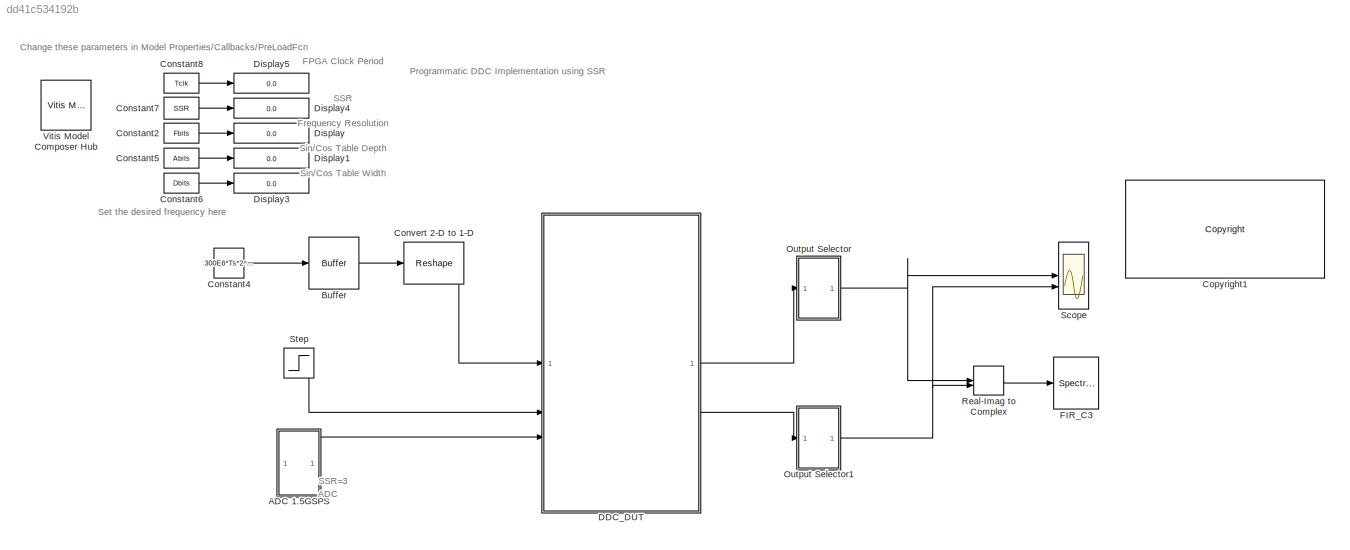
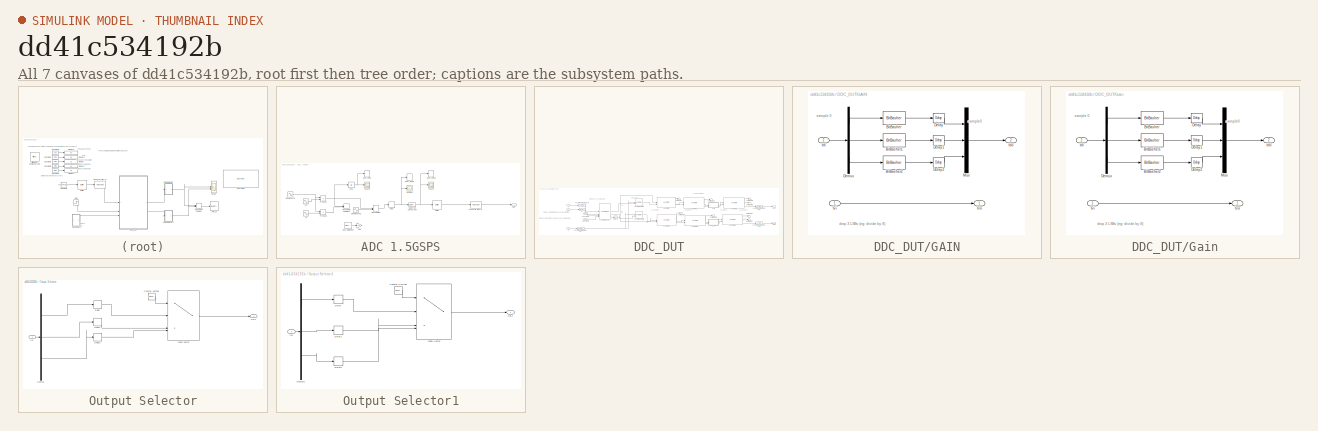
[diagram: thumbnail index - all 7 canvases of the model, root first then tree order]
MODEL slx_dd41c534192b
KIND model
CONFIG AbsTol = auto
CONFIG EnableMultiTasking = off
CONFIG FixedStep = auto
CONFIG MaxStep = auto
CONFIG MinStep = auto
CONFIG PreLoadFcn = Fbits=48; %frequency resolution\nAbits=16; %Sin/COS table depth is 2^Abits\nDbits=18; %Sin/COS table width is 1..-Dbits\n\n\nclk = 500e+6; % Hz\nsample_rate = 1/1500e+6; % 1.5GHz\nSSR = ceil((1/sample_rate)*(1/clk));\nTclk = 1/clk;\nTs = sample_rate;\n\n% FIR filter chain variables\nfir0=[-6,0,54,0,-254,0,1230,2048,1230,0,-254,0,54,0,-6];\n\nfir1=[-12,0,84,0,-337,0,1008,0,-2693,0,10142,16384,10142,0,-2693,0,100...<+235ch>
CONFIG RelTol = 1e-3
CONFIG SampleTimeConstraint = Unconstrained
CONFIG SolverName = VariableStepAuto
CONFIG StartFcn = start_time = tic;
CONFIG StartTime = 0.0
CONFIG StopFcn = stop_time = toc(start_time)/60
CONFIG StopTime = 10E-6
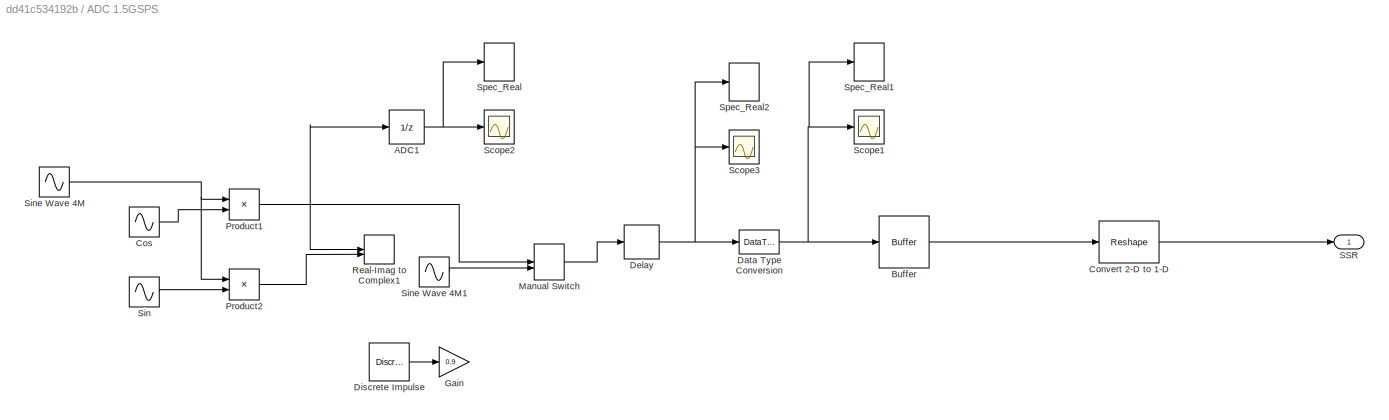
BLOCK [SubSystem] ADC 1.5GSPS
BLOCK [UnitDelay] ADC 1.5GSPS/ADC1
  Commented = on
  HasFrameUpgradeWarning = on
  SampleTime = sample_rate
BLOCK [Buffer] ADC 1.5GSPS/Buffer
  N = 3
  OutputFrames = off
BLOCK [Reshape] ADC 1.5GSPS/Convert 2-D to 1-D
BLOCK [Sin] ADC 1.5GSPS/Cos
  Frequency = 300e6*2*pi
  Phase = 1.5*pi/2
  SampleTime = sample_rate
BLOCK [DataTypeConversion] ADC 1.5GSPS/Data Type Conversion
  LockScale = on
  OutDataTypeStr = fixdt(1,12,11, 'DataTypeOverride', 'Off')
  RndMeth = Floor
  SaturateOnIntegerOverflow = off
BLOCK [Delay] ADC 1.5GSPS/Delay
  DelayLength = 10
  InitialCondition = 0
  InputPortMap = u0
BLOCK [Reference] ADC 1.5GSPS/Discrete Impulse  REF=dspsrcs4/Discrete 
Impulse
  SourceBlock = dspsrcs4/Discrete \nImpulse
  SourceType = Discrete Impulse
BLOCK [Gain] ADC 1.5GSPS/Gain
  Gain = 0.9
BLOCK [ManualSwitch] ADC 1.5GSPS/Manual Switch
BLOCK [Product] ADC 1.5GSPS/Product1
BLOCK [Product] ADC 1.5GSPS/Product2
BLOCK [RealImagToComplex] ADC 1.5GSPS/Real-Imag to Complex1
BLOCK [Outport] ADC 1.5GSPS/SSR
  VectorParamsAs1DForOutWhenUnconnected = off
BLOCK [Scope] ADC 1.5GSPS/Scope1
  Commented = on
  Floating = off
  NumInputPorts = 1
  ScopeSpecificationString = Simulink.scopes.TimeScopeBlockCfg('CurrentConfiguration', extmgr.ConfigurationSet(extmgr.Configuration('Core','General UI',true),extmgr.Configuration('Core','Source UI',true),extmgr.Configuration('Sources','WiredSimulink',true,'DataLoggingVariableName','ScopeData2'),extmgr.Configuration('Visuals','Time Domain',true,'SerializedDisplays',{struct('MinYLimReal','-1.12491','MaxYLimReal','1.12491','YLab...<+1485ch>
BLOCK [Scope] ADC 1.5GSPS/Scope2
  Commented = on
  Floating = off
  NumInputPorts = 1
  ScopeSpecificationString = Simulink.scopes.TimeScopeBlockCfg('CurrentConfiguration', extmgr.ConfigurationSet(extmgr.Configuration('Core','General UI',true),extmgr.Configuration('Core','Source UI',true),extmgr.Configuration('Sources','WiredSimulink',true,'DataLoggingVariableName','ScopeData3'),extmgr.Configuration('Visuals','Time Domain',true,'SerializedDisplays',{struct('MinYLimReal','-1.2499','MaxYLimReal','1.2499','YLabel...<+1437ch>
BLOCK [Scope] ADC 1.5GSPS/Scope3
  Commented = on
  Floating = off
  NumInputPorts = 1
  ScopeSpecificationString = Simulink.scopes.TimeScopeBlockCfg('CurrentConfiguration', extmgr.ConfigurationSet(extmgr.Configuration('Core','General UI',true),extmgr.Configuration('Core','Source UI',true),extmgr.Configuration('Sources','WiredSimulink',true,'DataLoggingVariableName','ScopeData1'),extmgr.Configuration('Visuals','Time Domain',true,'SerializedDisplays',{struct('MinYLimReal','-0.125','MaxYLimReal','1.125','YLabelRe...<+1466ch>
BLOCK [Sin] ADC 1.5GSPS/Sin
  Frequency = 300e6*2*pi
  SampleTime = sample_rate
BLOCK [Sin] ADC 1.5GSPS/Sine Wave 4M
  Amplitude = .9
  Frequency = 4e6*2*pi
  SampleTime = sample_rate
BLOCK [Sin] ADC 1.5GSPS/Sine Wave 4M1
  Amplitude = .9
  Frequency = 4e6*2*pi
  SampleTime = sample_rate
BLOCK [SpectrumAnalyzer] ADC 1.5GSPS/Spec_Real
  AveragingMethod = Exponential
  AxesScaling = Manual
  ChannelNames = [""]
  Commented = on
  DefaultConfigurationName = spbscopes.SpectrumAnalyzerBlockCfg
  GraphicalSettings = {"GraphicalSettings":{"Style":{"AxesColor":"[0 0 0]","DefaultMarker":"none","DisplayName":"","LabelsColor":"[0.686274509803922 0.686274509803922 0.686274509803922]","Line":"1","LineColor":"[[1      0.9098     0.39216]]","LineStyle":"[-]","LineWidth":"[1]","Marker":"[none]","MarkerEdgeColor":"auto","MarkerFaceColor":"none","MarkerSize":"6","Measurements":"struct","OnceAtStop":"false","Visible":"off...<+29ch>  <repeated x3 — deduplicated; at blocks: Spec_Real, Spec_Real1, Spec_Real2>
  Method = Welch
  SampleRate = 1500000000
  ScopeSpecificationString = spbscopes.SpectrumAnalyzerBlockCfg('CurrentConfiguration', extmgr.ConfigurationSet(extmgr.Configuration('Core','General UI',true,'FigureColor',[0.16        0.16        0.16]),extmgr.Configuration('Visuals','Spectrum',true,'Title','','YLabel','','MinYLim','-189.2899','MaxYLim','40.9275','Legend',false,'AxesProperties',struct('XGrid',{'on','on'},'YGrid',{'on','on'},'ZGrid',{'on','on'},'Color',{[0 0 ...<+2163ch>
  Span = 5e-09
  StartFrequency = -2.5e-09
  StopFrequency = 2.5e-09
  WasSavedAsWebScope = on
  WindowPosition = [635.4 8.2 638.4 420]
  YLimits = [-189.2899,40.9275]
BLOCK [SpectrumAnalyzer] ADC 1.5GSPS/Spec_Real1
  AveragingMethod = Exponential
  AxesScaling = Manual
  ChannelNames = [""]
  Commented = on
  DefaultConfigurationName = spbscopes.SpectrumAnalyzerBlockCfg
  Method = Welch
  SampleRate = 1500000000
  ScopeSpecificationString = spbscopes.SpectrumAnalyzerBlockCfg('CurrentConfiguration', extmgr.ConfigurationSet(extmgr.Configuration('Core','General UI',true,'FigureColor',[0.16        0.16        0.16]),extmgr.Configuration('Visuals','Spectrum',true,'Title','','YLabel','','MinYLim','-206.5987','MaxYLim','41.8342','Legend',false,'AxesProperties',struct('XGrid',{'on','on'},'YGrid',{'on','on'},'ZGrid',{'on','on'},'Color',{[0 0 ...<+2158ch>
  Span = 5e-09
  StartFrequency = -2.5e-09
  StopFrequency = 2.5e-09
  WasSavedAsWebScope = on
  WindowPosition = [9 9 1264 630.4]
  YLimits = [-206.5987,41.8342]
BLOCK [SpectrumAnalyzer] ADC 1.5GSPS/Spec_Real2
  AveragingMethod = Exponential
  AxesScaling = Manual
  ChannelNames = [""]
  Commented = on
  DefaultConfigurationName = spbscopes.SpectrumAnalyzerBlockCfg
  Method = Welch
  SampleRate = 1500000000
  ScopeSpecificationString = spbscopes.SpectrumAnalyzerBlockCfg('CurrentConfiguration', extmgr.ConfigurationSet(extmgr.Configuration('Core','General UI',true,'FigureColor',[0.16        0.16        0.16]),extmgr.Configuration('Visuals','Spectrum',true,'Title','','YLabel','','MinYLim','-206.5987','MaxYLim','41.8342','Legend',false,'AxesProperties',struct('XGrid',{'on','on'},'YGrid',{'on','on'},'ZGrid',{'on','on'},'Color',{[0 0 ...<+2161ch>
  Span = 5e-09
  StartFrequency = -2.5e-09
  StopFrequency = 2.5e-09
  WasSavedAsWebScope = on
  WindowPosition = [4.2 13 1264 630.4]
  YLimits = [-206.5987,41.8342]
BLOCK [Buffer] Buffer
  N = SSR
  OutputFrames = off
BLOCK [Constant] Constant2
  OutDataTypeStr = int32
  SampleTime = -1
  Value = Fbits
BLOCK [Constant] Constant4
  OutDataTypeStr = fixdt(1,Fbits,0)
  SampleTime = -1
  Value = 300E6*Ts*2^Fbits
BLOCK [Constant] Constant5
  OutDataTypeStr = int32
  SampleTime = -1
  Value = Abits
BLOCK [Constant] Constant6
  OutDataTypeStr = int32
  SampleTime = -1
  Value = Dbits
BLOCK [Constant] Constant7
  OutDataTypeStr = int32
  SampleTime = -1
  Value = SSR
BLOCK [Constant] Constant8
  OutDataTypeStr = double
  SampleTime = -1
  Value = Tclk
BLOCK [Reshape] Convert 2-D to 1-D
BLOCK [Reference] Copyright1  REF=hdlUtilities/<copyright redacted>
  SourceBlock = hdlUtilities/<copyright redacted>
  SourceType = Xilinx <copyright redacted>
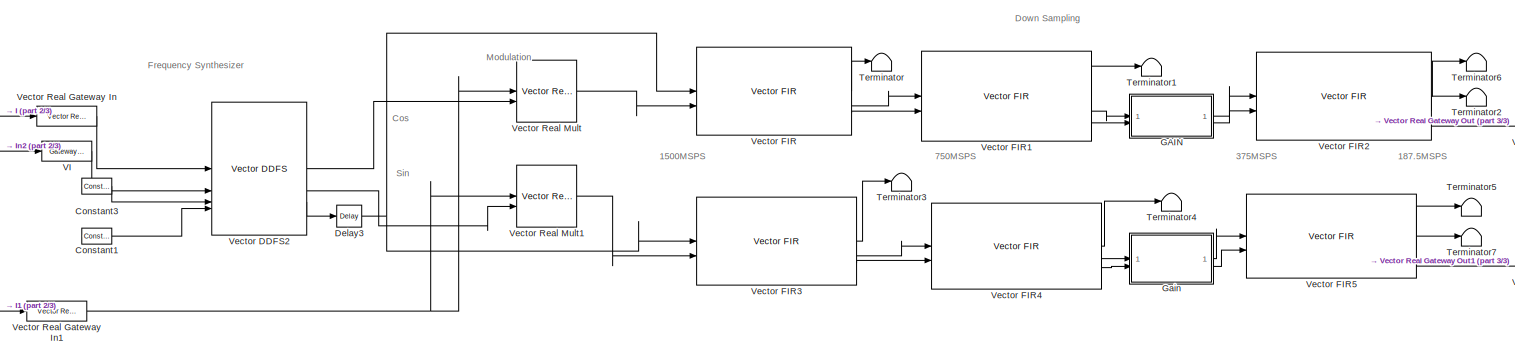
[diagram: DDC_DUT - part 1/3, most of the canvas]
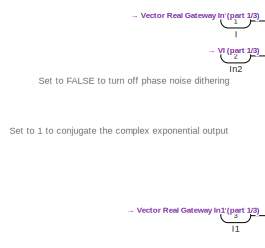
[diagram: DDC_DUT - part 2/3, middle left region]
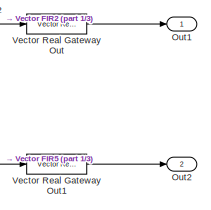
[diagram: DDC_DUT - part 3/3, middle right region]
BLOCK [SubSystem] DDC_DUT
BLOCK [Reference] DDC_DUT/Constant1  REF=hdlBasic/Constant
  SourceBlock = hdlBasic/Constant
  SourceType = Constant Block Block
BLOCK [Reference] DDC_DUT/Constant3  REF=hdlBasic/Constant
  SourceBlock = hdlBasic/Constant
  SourceType = Constant Block Block
BLOCK [Reference] DDC_DUT/Delay3  REF=hdlBasic/Delay
  SourceBlock = hdlBasic/Delay
  SourceType = Delay Block
BLOCK [SubSystem] DDC_DUT/GAIN
BLOCK [Reference] DDC_DUT/GAIN/BitBasher  REF=hdlBasic/BitBasher
  SourceBlock = hdlBasic/BitBasher
  SourceType = BitBasher Block
BLOCK [Reference] DDC_DUT/GAIN/BitBasher1  REF=hdlBasic/BitBasher
  SourceBlock = hdlBasic/BitBasher
  SourceType = BitBasher Block
BLOCK [Reference] DDC_DUT/GAIN/BitBasher2  REF=hdlBasic/BitBasher
  SourceBlock = hdlBasic/BitBasher
  SourceType = BitBasher Block
BLOCK [Reference] DDC_DUT/GAIN/Delay  REF=hdlBasic/Delay
  SourceBlock = hdlBasic/Delay
  SourceType = Delay Block
BLOCK [Reference] DDC_DUT/GAIN/Delay1  REF=hdlBasic/Delay
  SourceBlock = hdlBasic/Delay
  SourceType = Delay Block
BLOCK [Reference] DDC_DUT/GAIN/Delay2  REF=hdlBasic/Delay
  SourceBlock = hdlBasic/Delay
  SourceType = Delay Block
BLOCK [Demux] DDC_DUT/GAIN/Demux
  Outputs = 3
BLOCK [Mux] DDC_DUT/GAIN/Mux
  DisplayOption = bar
  Inputs = 3
BLOCK [Inport] DDC_DUT/GAIN/tdi
  Port = 2
BLOCK [Outport] DDC_DUT/GAIN/tdo
  Port = 2
  VectorParamsAs1DForOutWhenUnconnected = off
BLOCK [Inport] DDC_DUT/GAIN/tvi
BLOCK [Outport] DDC_DUT/GAIN/tvo
  VectorParamsAs1DForOutWhenUnconnected = off
BLOCK [SubSystem] DDC_DUT/Gain
BLOCK [Reference] DDC_DUT/Gain/BitBasher  REF=hdlBasic/BitBasher
  SourceBlock = hdlBasic/BitBasher
  SourceType = BitBasher Block
BLOCK [Reference] DDC_DUT/Gain/BitBasher1  REF=hdlBasic/BitBasher
  SourceBlock = hdlBasic/BitBasher
  SourceType = BitBasher Block
BLOCK [Reference] DDC_DUT/Gain/BitBasher2  REF=hdlBasic/BitBasher
  SourceBlock = hdlBasic/BitBasher
  SourceType = BitBasher Block
BLOCK [Reference] DDC_DUT/Gain/Delay  REF=hdlBasic/Delay
  SourceBlock = hdlBasic/Delay
  SourceType = Delay Block
BLOCK [Reference] DDC_DUT/Gain/Delay1  REF=hdlBasic/Delay
  SourceBlock = hdlBasic/Delay
  SourceType = Delay Block
BLOCK [Reference] DDC_DUT/Gain/Delay2  REF=hdlBasic/Delay
  SourceBlock = hdlBasic/Delay
  SourceType = Delay Block
BLOCK [Demux] DDC_DUT/Gain/Demux
  Outputs = 3
BLOCK [Mux] DDC_DUT/Gain/Mux
  DisplayOption = bar
  Inputs = 3
BLOCK [Inport] DDC_DUT/Gain/tdi
  Port = 2
BLOCK [Outport] DDC_DUT/Gain/tdo
  Port = 2
  VectorParamsAs1DForOutWhenUnconnected = off
BLOCK [Inport] DDC_DUT/Gain/tvi
BLOCK [Outport] DDC_DUT/Gain/tvo
  VectorParamsAs1DForOutWhenUnconnected = off
BLOCK [Inport] DDC_DUT/I
BLOCK [Inport] DDC_DUT/I1
  Port = 3
BLOCK [Inport] DDC_DUT/In2
  Port = 2
BLOCK [Outport] DDC_DUT/Out1
BLOCK [Outport] DDC_DUT/Out2
  Port = 2
BLOCK [Terminator] DDC_DUT/Terminator
BLOCK [Terminator] DDC_DUT/Terminator1
BLOCK [Terminator] DDC_DUT/Terminator2
BLOCK [Terminator] DDC_DUT/Terminator3
BLOCK [Terminator] DDC_DUT/Terminator4
BLOCK [Terminator] DDC_DUT/Terminator5
BLOCK [Terminator] DDC_DUT/Terminator6
BLOCK [Terminator] DDC_DUT/Terminator7
BLOCK [Reference] DDC_DUT/VI  REF=hdlBasic/Gateway In
  SourceBlock = hdlBasic/Gateway In
  SourceType = Gateway In Block
BLOCK [Reference] DDC_DUT/Vector DDFS2  REF=hdlSSR/Vector DDFS
  SourceBlock = hdlSSR/Vector DDFS
  SourceType = Xilinx Vector DDFS Block
BLOCK [Reference] DDC_DUT/Vector FIR  REF=hdlSSR/Vector FIR
  SourceBlock = hdlSSR/Vector FIR
  SourceType = Xilinx Vector FIR Compiler 7.2 Block
BLOCK [Reference] DDC_DUT/Vector FIR1  REF=hdlSSR/Vector FIR
  SourceBlock = hdlSSR/Vector FIR
  SourceType = Xilinx Vector FIR Compiler 7.2 Block
BLOCK [Reference] DDC_DUT/Vector FIR2  REF=hdlSSR/Vector FIR
  SourceBlock = hdlSSR/Vector FIR
  SourceType = Xilinx Vector FIR Compiler 7.2 Block
BLOCK [Reference] DDC_DUT/Vector FIR3  REF=hdlSSR/Vector FIR
  SourceBlock = hdlSSR/Vector FIR
  SourceType = Xilinx Vector FIR Compiler 7.2 Block
BLOCK [Reference] DDC_DUT/Vector FIR4  REF=hdlSSR/Vector FIR
  SourceBlock = hdlSSR/Vector FIR
  SourceType = Xilinx Vector FIR Compiler 7.2 Block
BLOCK [Reference] DDC_DUT/Vector FIR5  REF=hdlSSR/Vector FIR
  SourceBlock = hdlSSR/Vector FIR
  SourceType = Xilinx Vector FIR Compiler 7.2 Block
BLOCK [Reference] DDC_DUT/Vector Real Gateway In  REF=hdlSSR/Vector Real Gateway In
  SourceBlock = hdlSSR/Vector Real Gateway In
  SourceType = Xilinx Vector Gateway In Block
BLOCK [Reference] DDC_DUT/Vector Real Gateway In1  REF=hdlSSR/Vector Real Gateway In
  SourceBlock = hdlSSR/Vector Real Gateway In
  SourceType = Xilinx Vector Gateway In Block
BLOCK [Reference] DDC_DUT/Vector Real Gateway Out  REF=hdlSSR/Vector Real Gateway Out
  SourceBlock = hdlSSR/Vector Real Gateway Out
  SourceType = Xilinx Vector Gateway Out Block
BLOCK [Reference] DDC_DUT/Vector Real Gateway Out1  REF=hdlSSR/Vector Real Gateway Out
  SourceBlock = hdlSSR/Vector Real Gateway Out
  SourceType = Xilinx Vector Gateway Out Block
BLOCK [Reference] DDC_DUT/Vector Real Mult  REF=hdlSSR/Vector Real Mult
  SourceBlock = hdlSSR/Vector Real Mult
  SourceType = Xilinx Vector Multiplier Block
BLOCK [Reference] DDC_DUT/Vector Real Mult1  REF=hdlSSR/Vector Real Mult
  SourceBlock = hdlSSR/Vector Real Mult
  SourceType = Xilinx Vector Multiplier Block
BLOCK [Display] Display
  Decimation = 1
BLOCK [Display] Display1
  Decimation = 1
BLOCK [Display] Display3
  Decimation = 1
BLOCK [Display] Display4
  Decimation = 1
BLOCK [Display] Display5
  Decimation = 1
BLOCK [SpectrumAnalyzer] FIR_C3
  AveragingMethod = Exponential
  AxesScaling = Manual
  ChannelNames = [""]
  DefaultConfigurationName = spbscopes.SpectrumAnalyzerBlockCfg
  Method = Welch
  ScopeSpecificationString = spbscopes.SpectrumAnalyzerBlockCfg('CurrentConfiguration', extmgr.ConfigurationSet(extmgr.Configuration('Core','General UI',true,'FigureColor',[0.16        0.16        0.16]),extmgr.Configuration('Visuals','Spectrum',true,'Title','','YLabel','','MinYLim','146.6812','MaxYLim','269.796','Legend',false,'AxesProperties',struct('XGrid',{'on','on'},'YGrid',{'on','on'},'ZGrid',{'on','on'},'Color',{[0 0 0...<+2356ch>
  WasSavedAsWebScope = on
BLOCK [SubSystem] Output Selector
BLOCK [Reference] Output Selector/Counter Limited  REF=simulink/Sources/Counter
Limited
  SourceBlock = simulink/Sources/Counter\nLimited
  SourceType = Counter Limited
BLOCK [Delay] Output Selector/Delay
  DelayLength = 1
  InitialCondition = 0
  InputPortMap = u0
  SampleTime = 1/62.5e6
BLOCK [Delay] Output Selector/Delay1
  DelayLength = 1
  InitialCondition = 0
  InputPortMap = u0
  SampleTime = 1/62.5e6
BLOCK [Delay] Output Selector/Delay2
  DelayLength = 1
  InitialCondition = 0
  InputPortMap = u0
  SampleTime = 1/62.5e6
BLOCK [Demux] Output Selector/Demux
  Outputs = 3
BLOCK [Inport] Output Selector/In1
BLOCK [MultiPortSwitch] Output Selector/Index Vector
  DataPortOrder = Zero-based contiguous
  InputSameDT = off
  SaturateOnIntegerOverflow = off
  zeroidx = on
BLOCK [Outport] Output Selector/Out1
  VectorParamsAs1DForOutWhenUnconnected = off
BLOCK [SubSystem] Output Selector1
BLOCK [Reference] Output Selector1/Counter Limited  REF=simulink/Sources/Counter
Limited
  SourceBlock = simulink/Sources/Counter\nLimited
  SourceType = Counter Limited
BLOCK [Delay] Output Selector1/Delay
  DelayLength = 1
  InitialCondition = 0
  InputPortMap = u0
  SampleTime = 1/62.5e6
BLOCK [Delay] Output Selector1/Delay1
  DelayLength = 1
  InitialCondition = 0
  InputPortMap = u0
  SampleTime = 1/62.5e6
BLOCK [Delay] Output Selector1/Delay2
  DelayLength = 1
  InitialCondition = 0
  InputPortMap = u0
  SampleTime = 1/62.5e6
BLOCK [Demux] Output Selector1/Demux1
  Outputs = 3
BLOCK [Inport] Output Selector1/In1
BLOCK [MultiPortSwitch] Output Selector1/Index Vector
  DataPortOrder = Zero-based contiguous
  InputSameDT = off
  SaturateOnIntegerOverflow = off
  zeroidx = on
BLOCK [Outport] Output Selector1/Out1
  VectorParamsAs1DForOutWhenUnconnected = off
BLOCK [RealImagToComplex] Real-Imag to Complex
BLOCK [Scope] Scope
  Floating = off
  NumInputPorts = 2
  ScopeSpecificationString = Simulink.scopes.TimeScopeBlockCfg('CurrentConfiguration', extmgr.ConfigurationSet(extmgr.Configuration('Core','General UI',true),extmgr.Configuration('Core','Source UI',true),extmgr.Configuration('Sources','WiredSimulink',true,'DataLoggingVariableName','ScopeData1'),extmgr.Configuration('Visuals','Time Domain',true,'SerializedDisplays',{struct('MinYLimReal','-438964564098.125','MaxYLimReal','43752...<+2436ch>
BLOCK [Step] Step
  SampleTime = 0
  Time = 10/clk
BLOCK [Reference] Vitis Model Composer Hub  REF=vmcUtilities/Vitis Model Composer Hub
  SourceBlock = vmcUtilities/Vitis Model Composer Hub
  SourceType = VMC Hub
  Tag = genX
  UserDataPersistent = on
ANNOTATION (root): Programmatic DDC Implementation using SSR
ANNOTATION (root): ADC
ANNOTATION (root): Change these parameters in Model Properties/Callbacks/PreLoadFcn
ANNOTATION (root): FPGA Clock Period
ANNOTATION (root): Frequency Resolution
ANNOTATION (root): SSR
ANNOTATION (root): SSR=3
ANNOTATION (root): Set the desired frequency here
ANNOTATION (root): Sin/Cos Table Depth
ANNOTATION (root): Sin/Cos Table Width
ANNOTATION DDC_DUT: 1500MSPS
ANNOTATION DDC_DUT: 187.5MSPS
ANNOTATION DDC_DUT: 375MSPS
ANNOTATION DDC_DUT: 750MSPS
ANNOTATION DDC_DUT: Frequency Synthesizer
ANNOTATION DDC_DUT: Modulation
ANNOTATION DDC_DUT: Down Sampling
ANNOTATION DDC_DUT: Cos
ANNOTATION DDC_DUT: Set to 1 to conjugate the complex exponential output
ANNOTATION DDC_DUT: Set to FALSE to turn off phase noise dithering
ANNOTATION DDC_DUT: Sin
ANNOTATION DDC_DUT/GAIN: drop 3 LSBs (eg: divide by 8)
ANNOTATION DDC_DUT/GAIN: sample 0
ANNOTATION DDC_DUT/GAIN: sample0
ANNOTATION DDC_DUT/Gain: drop 3 LSBs (eg: divide by 8)
ANNOTATION DDC_DUT/Gain: sample 0
ANNOTATION DDC_DUT/Gain: sample0
NET ADC 1.5GSPS/ADC1:1 -> ADC 1.5GSPS/Scope2:1, ADC 1.5GSPS/Spec_Real:1
LINE ADC 1.5GSPS/Buffer:1 -> ADC 1.5GSPS/Convert 2-D to 1-D:1
LINE ADC 1.5GSPS/Convert 2-D to 1-D:1 -> ADC 1.5GSPS/SSR:1
LINE ADC 1.5GSPS/Cos:1 -> ADC 1.5GSPS/Product1:2
NET ADC 1.5GSPS/Data Type Conversion:1 -> ADC 1.5GSPS/Buffer:1, ADC 1.5GSPS/Scope1:1, ADC 1.5GSPS/Spec_Real1:1
NET ADC 1.5GSPS/Delay:1 -> ADC 1.5GSPS/Data Type Conversion:1, ADC 1.5GSPS/Scope3:1, ADC 1.5GSPS/Spec_Real2:1
LINE ADC 1.5GSPS/Discrete Impulse:1 -> ADC 1.5GSPS/Gain:1
LINE ADC 1.5GSPS/Manual Switch:1 -> ADC 1.5GSPS/Delay:1
NET ADC 1.5GSPS/Product1:1 -> ADC 1.5GSPS/ADC1:1, ADC 1.5GSPS/Manual Switch:1, ADC 1.5GSPS/Real-Imag to Complex1:1
LINE ADC 1.5GSPS/Product2:1 -> ADC 1.5GSPS/Real-Imag to Complex1:2
LINE ADC 1.5GSPS/Sin:1 -> ADC 1.5GSPS/Product2:2
LINE ADC 1.5GSPS/Sine Wave 4M1:1 -> ADC 1.5GSPS/Manual Switch:2
NET ADC 1.5GSPS/Sine Wave 4M:1 -> ADC 1.5GSPS/Product1:1, ADC 1.5GSPS/Product2:1
LINE ADC 1.5GSPS:1 -> DDC_DUT:3
LINE Buffer:1 -> Convert 2-D to 1-D:1
LINE Constant2:1 -> Display:1
LINE Constant4:1 -> Buffer:1
LINE Constant5:1 -> Display1:1
LINE Constant6:1 -> Display3:1
LINE Constant7:1 -> Display4:1
LINE Constant8:1 -> Display5:1
LINE Convert 2-D to 1-D:1 -> DDC_DUT:1
LINE DDC_DUT/Constant1:1 -> DDC_DUT/Vector DDFS2:4
LINE DDC_DUT/Constant3:1 -> DDC_DUT/Vector DDFS2:3
NET DDC_DUT/Delay3:1 -> DDC_DUT/Vector FIR3:1, DDC_DUT/Vector FIR:1
LINE DDC_DUT/GAIN/BitBasher1:1 -> DDC_DUT/GAIN/Delay1:1
LINE DDC_DUT/GAIN/BitBasher2:1 -> DDC_DUT/GAIN/Delay2:1
LINE DDC_DUT/GAIN/BitBasher:1 -> DDC_DUT/GAIN/Delay:1
LINE DDC_DUT/GAIN/Delay1:1 -> DDC_DUT/GAIN/Mux:2
LINE DDC_DUT/GAIN/Delay2:1 -> DDC_DUT/GAIN/Mux:3
LINE DDC_DUT/GAIN/Delay:1 -> DDC_DUT/GAIN/Mux:1
LINE DDC_DUT/GAIN/Demux:1 -> DDC_DUT/GAIN/BitBasher:1
LINE DDC_DUT/GAIN/Demux:2 -> DDC_DUT/GAIN/BitBasher1:1
LINE DDC_DUT/GAIN/Demux:3 -> DDC_DUT/GAIN/BitBasher2:1
LINE DDC_DUT/GAIN/Mux:1 -> DDC_DUT/GAIN/tdo:1
LINE DDC_DUT/GAIN/tdi:1 -> DDC_DUT/GAIN/Demux:1
LINE DDC_DUT/GAIN/tvi:1 -> DDC_DUT/GAIN/tvo:1
LINE DDC_DUT/GAIN:1 -> DDC_DUT/Vector FIR2:1
LINE DDC_DUT/GAIN:2 -> DDC_DUT/Vector FIR2:2
LINE DDC_DUT/Gain/BitBasher1:1 -> DDC_DUT/Gain/Delay1:1
LINE DDC_DUT/Gain/BitBasher2:1 -> DDC_DUT/Gain/Delay2:1
LINE DDC_DUT/Gain/BitBasher:1 -> DDC_DUT/Gain/Delay:1
LINE DDC_DUT/Gain/Delay1:1 -> DDC_DUT/Gain/Mux:2
LINE DDC_DUT/Gain/Delay2:1 -> DDC_DUT/Gain/Mux:3
LINE DDC_DUT/Gain/Delay:1 -> DDC_DUT/Gain/Mux:1
LINE DDC_DUT/Gain/Demux:1 -> DDC_DUT/Gain/BitBasher:1
LINE DDC_DUT/Gain/Demux:2 -> DDC_DUT/Gain/BitBasher1:1
LINE DDC_DUT/Gain/Demux:3 -> DDC_DUT/Gain/BitBasher2:1
LINE DDC_DUT/Gain/Mux:1 -> DDC_DUT/Gain/tdo:1
LINE DDC_DUT/Gain/tdi:1 -> DDC_DUT/Gain/Demux:1
LINE DDC_DUT/Gain/tvi:1 -> DDC_DUT/Gain/tvo:1
LINE DDC_DUT/Gain:1 -> DDC_DUT/Vector FIR5:1
LINE DDC_DUT/Gain:2 -> DDC_DUT/Vector FIR5:2
LINE DDC_DUT/I1:1 -> DDC_DUT/Vector Real Gateway In1:1
LINE DDC_DUT/I:1 -> DDC_DUT/Vector Real Gateway In:1
LINE DDC_DUT/In2:1 -> DDC_DUT/VI:1
LINE DDC_DUT/VI:1 -> DDC_DUT/Vector DDFS2:2
LINE DDC_DUT/Vector DDFS2:1 -> DDC_DUT/Vector Real Mult:2
LINE DDC_DUT/Vector DDFS2:2 -> DDC_DUT/Vector Real Mult1:2
LINE DDC_DUT/Vector DDFS2:3 -> DDC_DUT/Delay3:1
LINE DDC_DUT/Vector FIR1:1 -> DDC_DUT/Terminator1:1
LINE DDC_DUT/Vector FIR1:2 -> DDC_DUT/GAIN:1
LINE DDC_DUT/Vector FIR1:3 -> DDC_DUT/GAIN:2
LINE DDC_DUT/Vector FIR2:1 -> DDC_DUT/Terminator6:1
LINE DDC_DUT/Vector FIR2:2 -> DDC_DUT/Terminator2:1
LINE DDC_DUT/Vector FIR2:3 -> DDC_DUT/Vector Real Gateway Out:1
LINE DDC_DUT/Vector FIR3:1 -> DDC_DUT/Terminator3:1
LINE DDC_DUT/Vector FIR3:2 -> DDC_DUT/Vector FIR4:1
LINE DDC_DUT/Vector FIR3:3 -> DDC_DUT/Vector FIR4:2
LINE DDC_DUT/Vector FIR4:1 -> DDC_DUT/Terminator4:1
LINE DDC_DUT/Vector FIR4:2 -> DDC_DUT/Gain:1
LINE DDC_DUT/Vector FIR4:3 -> DDC_DUT/Gain:2
LINE DDC_DUT/Vector FIR5:1 -> DDC_DUT/Terminator5:1
LINE DDC_DUT/Vector FIR5:2 -> DDC_DUT/Terminator7:1
LINE DDC_DUT/Vector FIR5:3 -> DDC_DUT/Vector Real Gateway Out1:1
LINE DDC_DUT/Vector FIR:1 -> DDC_DUT/Terminator:1
LINE DDC_DUT/Vector FIR:2 -> DDC_DUT/Vector FIR1:1
LINE DDC_DUT/Vector FIR:3 -> DDC_DUT/Vector FIR1:2
NET DDC_DUT/Vector Real Gateway In1:1 -> DDC_DUT/Vector Real Mult1:1, DDC_DUT/Vector Real Mult:1
LINE DDC_DUT/Vector Real Gateway In:1 -> DDC_DUT/Vector DDFS2:1
LINE DDC_DUT/Vector Real Gateway Out1:1 -> DDC_DUT/Out2:1
LINE DDC_DUT/Vector Real Gateway Out:1 -> DDC_DUT/Out1:1
LINE DDC_DUT/Vector Real Mult1:1 -> DDC_DUT/Vector FIR3:2
LINE DDC_DUT/Vector Real Mult:1 -> DDC_DUT/Vector FIR:2
LINE DDC_DUT:1 -> Output Selector:1
LINE DDC_DUT:2 -> Output Selector1:1
LINE Output Selector/Counter Limited:1 -> Output Selector/Index Vector:1
LINE Output Selector/Delay1:1 -> Output Selector/Index Vector:3
LINE Output Selector/Delay2:1 -> Output Selector/Index Vector:4
LINE Output Selector/Delay:1 -> Output Selector/Index Vector:2
LINE Output Selector/Demux:1 -> Output Selector/Delay:1
LINE Output Selector/Demux:2 -> Output Selector/Delay1:1
LINE Output Selector/Demux:3 -> Output Selector/Delay2:1
LINE Output Selector/In1:1 -> Output Selector/Demux:1
LINE Output Selector/Index Vector:1 -> Output Selector/Out1:1
LINE Output Selector1/Counter Limited:1 -> Output Selector1/Index Vector:1
LINE Output Selector1/Delay1:1 -> Output Selector1/Index Vector:3
LINE Output Selector1/Delay2:1 -> Output Selector1/Index Vector:4
LINE Output Selector1/Delay:1 -> Output Selector1/Index Vector:2
LINE Output Selector1/Demux1:1 -> Output Selector1/Delay:1
LINE Output Selector1/Demux1:2 -> Output Selector1/Delay1:1
LINE Output Selector1/Demux1:3 -> Output Selector1/Delay2:1
LINE Output Selector1/In1:1 -> Output Selector1/Demux1:1
LINE Output Selector1/Index Vector:1 -> Output Selector1/Out1:1
NET Output Selector1:1 -> Real-Imag to Complex:2, Scope:2
NET Output Selector:1 -> Real-Imag to Complex:1, Scope:1
LINE Real-Imag to Complex:1 -> FIR_C3:1
LINE Step:1 -> DDC_DUT:2
note: NET lines group one-source signal fan-out (src -> all destinations, sorted); 1:1 wires keep LINE
